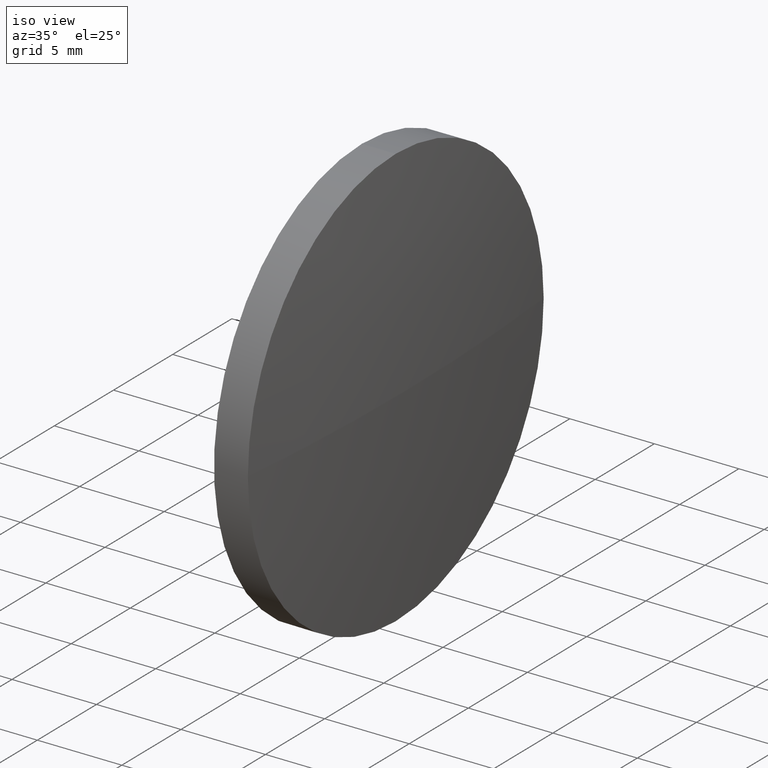
[diagram: clean part render]
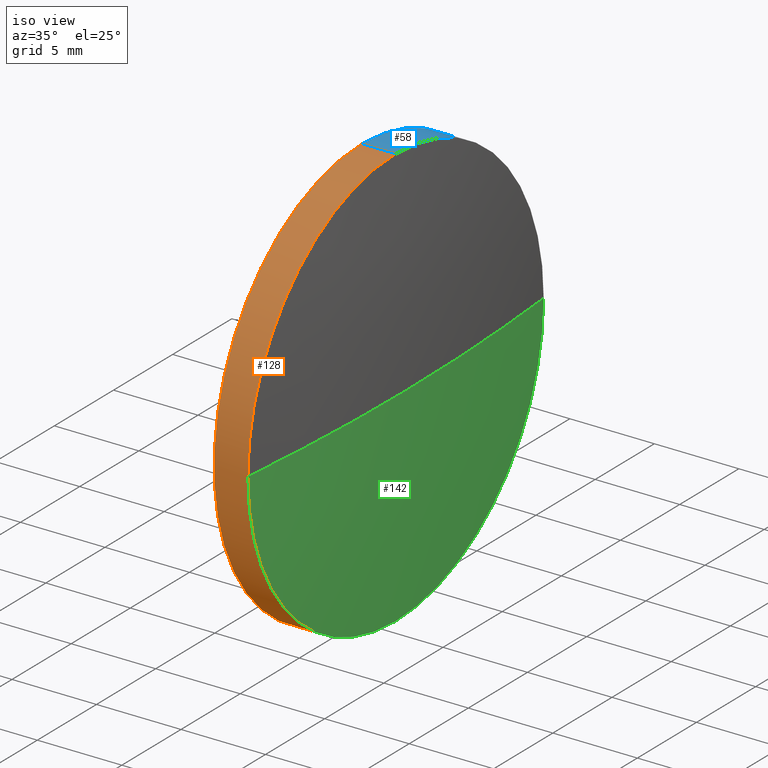
[diagram: same view with three faces highlighted in distinct colors, each labeled with its STEP entity id]
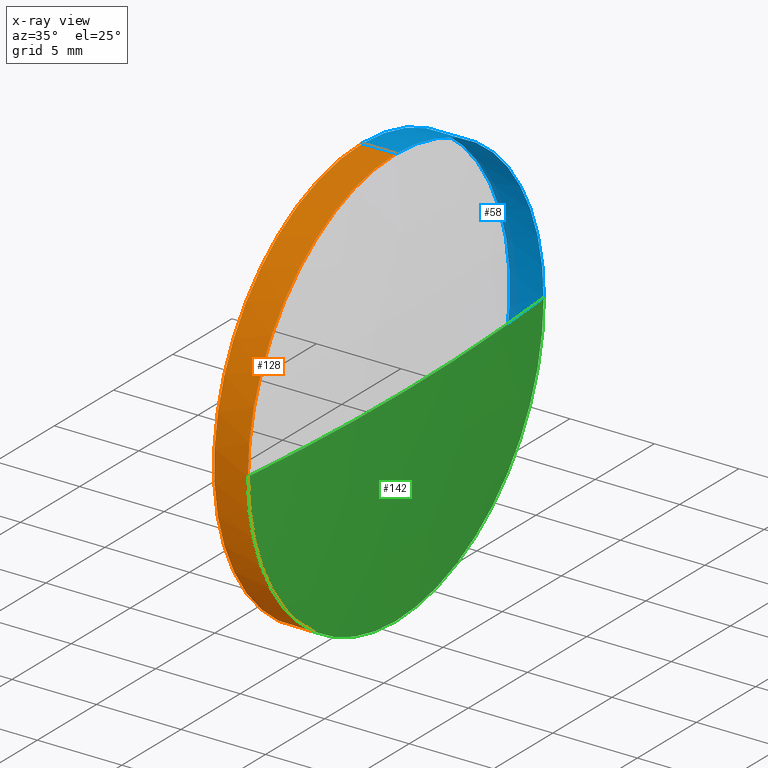
[diagram: x-ray of the same camera — body ghosted, the three highlighted faces saturated]
A machine part, iso view with three faces highlighted in distinct colors.
The next image is the same camera in x-ray (body ghosted, the three faces saturated) — at least one of them is partly hidden behind the body in this view.
Their STEP definitions:

[orange] entity #128 — the highlighted cylindrical surface (partial cylindrical patch) has radius 12.5 mm, axis along (-1, -0, -0).
#4 = CARTESIAN_POINT ( 'NONE',  ( 397.0637823262245500, 95.20191544312206100, 0.0000000000000000000 ) ) ;
#8 = CYLINDRICAL_SURFACE ( 'NONE', #35, 12.49999999999999600 ) ;
#13 = EDGE_CURVE ( 'NONE', #52, #54, #84, .T. ) ;
#23 = DIRECTION ( 'NONE',  ( 0.0000000000000000000, 0.0000000000000000000, 1.000000000000000000 ) ) ;
#24 = CARTESIAN_POINT ( 'NONE',  ( 393.0346747477875600, 95.20191544312206100, 0.0000000000000000000 ) ) ;
#34 = CARTESIAN_POINT ( 'NONE',  ( 397.0637823262245500, 82.70191544312200400, -1.530808498934184800E-015 ) ) ;
#35 = AXIS2_PLACEMENT_3D ( 'NONE', #24, #130, #61 ) ;
#37 = DIRECTION ( 'NONE',  ( 0.0000000000000000000, 0.0000000000000000000, 1.000000000000000000 ) ) ;
#38 = EDGE_LOOP ( 'NONE', ( #83, #184, #80, #62, #148 ) ) ;
#40 = CIRCLE ( 'NONE', #59, 12.49999999999999600 ) ;
#49 = CARTESIAN_POINT ( 'NONE',  ( 395.0637823262245500, 95.20191544312206100, 12.49999999999999600 ) ) ;
#50 = VERTEX_POINT ( 'NONE', #143 ) ;
#52 = VERTEX_POINT ( 'NONE', #157 ) ;
#54 = VERTEX_POINT ( 'NONE', #34 ) ;
#59 = AXIS2_PLACEMENT_3D ( 'NONE', #99, #176, #23 ) ;
#60 = DIRECTION ( 'NONE',  ( 0.0000000000000000000, 0.0000000000000000000, 1.000000000000000000 ) ) ;
#61 = DIRECTION ( 'NONE',  ( 0.0000000000000000000, 0.0000000000000000000, 1.000000000000000000 ) ) ;
#62 = ORIENTED_EDGE ( 'NONE', *, *, #186, .T. ) ;
#66 = VECTOR ( 'NONE', #117, 1000.000000000000000 ) ;
#68 = VERTEX_POINT ( 'NONE', #49 ) ;
#71 = DIRECTION ( 'NONE',  ( -1.000000000000000000, -0.0000000000000000000, -0.0000000000000000000 ) ) ;
#72 = CIRCLE ( 'NONE', #146, 12.49999999999999600 ) ;
#74 = CARTESIAN_POINT ( 'NONE',  ( 397.0637823262245500, 95.20191544312206100, 12.49999999999999600 ) ) ;
#75 = LINE ( 'NONE', #166, #66 ) ;
#80 = ORIENTED_EDGE ( 'NONE', *, *, #110, .T. ) ;
#82 = LINE ( 'NONE', #88, #149 ) ;
#83 = ORIENTED_EDGE ( 'NONE', *, *, #168, .F. ) ;
#84 = CIRCLE ( 'NONE', #185, 12.49999999999999600 ) ;
#88 = CARTESIAN_POINT ( 'NONE',  ( 393.0346747477875600, 95.20191544312206100, -12.49999999999999600 ) ) ;
#90 = CARTESIAN_POINT ( 'NONE',  ( 395.0637823262245500, 95.20191544312206100, 0.0000000000000000000 ) ) ;
#99 = CARTESIAN_POINT ( 'NONE',  ( 397.0637823262245500, 95.20191544312206100, 0.0000000000000000000 ) ) ;
#101 = DIRECTION ( 'NONE',  ( -1.000000000000000000, -0.0000000000000000000, -0.0000000000000000000 ) ) ;
#110 = EDGE_CURVE ( 'NONE', #54, #122, #40, .T. ) ;
#117 = DIRECTION ( 'NONE',  ( -1.000000000000000000, -0.0000000000000000000, -0.0000000000000000000 ) ) ;
#122 = VERTEX_POINT ( 'NONE', #74 ) ;
#128 = ADVANCED_FACE ( 'NONE', ( #169 ), #8, .T. ) ;
#130 = DIRECTION ( 'NONE',  ( -1.000000000000000000, -0.0000000000000000000, -0.0000000000000000000 ) ) ;
#143 = CARTESIAN_POINT ( 'NONE',  ( 395.0637823262245500, 95.20191544312206100, -12.49999999999999600 ) ) ;
#146 = AXIS2_PLACEMENT_3D ( 'NONE', #90, #101, #37 ) ;
#147 = DIRECTION ( 'NONE',  ( -1.000000000000000000, -0.0000000000000000000, -0.0000000000000000000 ) ) ;
#148 = ORIENTED_EDGE ( 'NONE', *, *, #153, .F. ) ;
#149 = VECTOR ( 'NONE', #147, 1000.000000000000000 ) ;
#153 = EDGE_CURVE ( 'NONE', #50, #68, #72, .T. ) ;
#157 = CARTESIAN_POINT ( 'NONE',  ( 397.0637823262245500, 95.20191544312206100, -12.49999999999999600 ) ) ;
#166 = CARTESIAN_POINT ( 'NONE',  ( 393.0346747477875600, 95.20191544312206100, 12.49999999999999600 ) ) ;
#168 = EDGE_CURVE ( 'NONE', #52, #50, #82, .T. ) ;
#169 = FACE_OUTER_BOUND ( 'NONE', #38, .T. ) ;
#176 = DIRECTION ( 'NONE',  ( -1.000000000000000000, -0.0000000000000000000, -0.0000000000000000000 ) ) ;
#184 = ORIENTED_EDGE ( 'NONE', *, *, #13, .T. ) ;
#185 = AXIS2_PLACEMENT_3D ( 'NONE', #4, #71, #60 ) ;
#186 = EDGE_CURVE ( 'NONE', #122, #68, #75, .T. ) ;

[blue] entity #58 — the highlighted cylindrical surface (partial cylindrical patch) has radius 12.5 mm, axis along (-1, -0, -0).
#5 = AXIS2_PLACEMENT_3D ( 'NONE', #177, #33, #85 ) ;
#6 = DIRECTION ( 'NONE',  ( -1.000000000000000000, -0.0000000000000000000, -0.0000000000000000000 ) ) ;
#9 = CIRCLE ( 'NONE', #5, 12.49999999999999600 ) ;
#15 = AXIS2_PLACEMENT_3D ( 'NONE', #145, #6, #131 ) ;
#16 = FACE_OUTER_BOUND ( 'NONE', #174, .T. ) ;
#20 = VERTEX_POINT ( 'NONE', #36 ) ;
#21 = CYLINDRICAL_SURFACE ( 'NONE', #15, 12.49999999999999600 ) ;
#27 = CARTESIAN_POINT ( 'NONE',  ( 397.0637823262245500, 95.20191544312206100, 0.0000000000000000000 ) ) ;
#31 = AXIS2_PLACEMENT_3D ( 'NONE', #163, #77, #91 ) ;
#33 = DIRECTION ( 'NONE',  ( -1.000000000000000000, -0.0000000000000000000, -0.0000000000000000000 ) ) ;
#36 = CARTESIAN_POINT ( 'NONE',  ( 397.0637823262245500, 107.7019154431220200, 0.0000000000000000000 ) ) ;
#41 = ORIENTED_EDGE ( 'NONE', *, *, #134, .T. ) ;
#44 = ORIENTED_EDGE ( 'NONE', *, *, #164, .T. ) ;
#49 = CARTESIAN_POINT ( 'NONE',  ( 395.0637823262245500, 95.20191544312206100, 12.49999999999999600 ) ) ;
#50 = VERTEX_POINT ( 'NONE', #143 ) ;
#52 = VERTEX_POINT ( 'NONE', #157 ) ;
#58 = ADVANCED_FACE ( 'NONE', ( #16 ), #21, .T. ) ;
#66 = VECTOR ( 'NONE', #117, 1000.000000000000000 ) ;
#68 = VERTEX_POINT ( 'NONE', #49 ) ;
#74 = CARTESIAN_POINT ( 'NONE',  ( 397.0637823262245500, 95.20191544312206100, 12.49999999999999600 ) ) ;
#75 = LINE ( 'NONE', #166, #66 ) ;
#77 = DIRECTION ( 'NONE',  ( -1.000000000000000000, -0.0000000000000000000, -0.0000000000000000000 ) ) ;
#78 = DIRECTION ( 'NONE',  ( -1.000000000000000000, -0.0000000000000000000, -0.0000000000000000000 ) ) ;
#82 = LINE ( 'NONE', #88, #149 ) ;
#85 = DIRECTION ( 'NONE',  ( 0.0000000000000000000, 0.0000000000000000000, 1.000000000000000000 ) ) ;
#86 = ORIENTED_EDGE ( 'NONE', *, *, #186, .F. ) ;
#88 = CARTESIAN_POINT ( 'NONE',  ( 393.0346747477875600, 95.20191544312206100, -12.49999999999999600 ) ) ;
#91 = DIRECTION ( 'NONE',  ( 0.0000000000000000000, 0.0000000000000000000, 1.000000000000000000 ) ) ;
#103 = CIRCLE ( 'NONE', #136, 12.49999999999999600 ) ;
#106 = ORIENTED_EDGE ( 'NONE', *, *, #121, .F. ) ;
#108 = CIRCLE ( 'NONE', #31, 12.49999999999999600 ) ;
#114 = ORIENTED_EDGE ( 'NONE', *, *, #168, .T. ) ;
#117 = DIRECTION ( 'NONE',  ( -1.000000000000000000, -0.0000000000000000000, -0.0000000000000000000 ) ) ;
#121 = EDGE_CURVE ( 'NONE', #68, #50, #9, .T. ) ;
#122 = VERTEX_POINT ( 'NONE', #74 ) ;
#131 = DIRECTION ( 'NONE',  ( 0.0000000000000000000, 0.0000000000000000000, 1.000000000000000000 ) ) ;
#134 = EDGE_CURVE ( 'NONE', #20, #52, #108, .T. ) ;
#136 = AXIS2_PLACEMENT_3D ( 'NONE', #27, #78, #179 ) ;
#143 = CARTESIAN_POINT ( 'NONE',  ( 395.0637823262245500, 95.20191544312206100, -12.49999999999999600 ) ) ;
#145 = CARTESIAN_POINT ( 'NONE',  ( 393.0346747477875600, 95.20191544312206100, 0.0000000000000000000 ) ) ;
#147 = DIRECTION ( 'NONE',  ( -1.000000000000000000, -0.0000000000000000000, -0.0000000000000000000 ) ) ;
#149 = VECTOR ( 'NONE', #147, 1000.000000000000000 ) ;
#157 = CARTESIAN_POINT ( 'NONE',  ( 397.0637823262245500, 95.20191544312206100, -12.49999999999999600 ) ) ;
#163 = CARTESIAN_POINT ( 'NONE',  ( 397.0637823262245500, 95.20191544312206100, 0.0000000000000000000 ) ) ;
#164 = EDGE_CURVE ( 'NONE', #122, #20, #103, .T. ) ;
#166 = CARTESIAN_POINT ( 'NONE',  ( 393.0346747477875600, 95.20191544312206100, 12.49999999999999600 ) ) ;
#168 = EDGE_CURVE ( 'NONE', #52, #50, #82, .T. ) ;
#174 = EDGE_LOOP ( 'NONE', ( #41, #114, #106, #86, #44 ) ) ;
#177 = CARTESIAN_POINT ( 'NONE',  ( 395.0637823262245500, 95.20191544312206100, 0.0000000000000000000 ) ) ;
#179 = DIRECTION ( 'NONE',  ( 0.0000000000000000000, 0.0000000000000000000, 1.000000000000000000 ) ) ;
#186 = EDGE_CURVE ( 'NONE', #122, #68, #75, .T. ) ;

[green] entity #142 — the highlighted spherical surface has radius 128.379 mm.
#4 = CARTESIAN_POINT ( 'NONE',  ( 397.0637823262245500, 95.20191544312206100, 0.0000000000000000000 ) ) ;
#7 = CARTESIAN_POINT ( 'NONE',  ( 269.2950118344210800, 95.20191544312194800, 0.0000000000000000000 ) ) ;
#10 = DIRECTION ( 'NONE',  ( -0.0000000000000000000, 0.0000000000000000000, -1.000000000000000000 ) ) ;
#11 = FACE_OUTER_BOUND ( 'NONE', #139, .T. ) ;
#13 = EDGE_CURVE ( 'NONE', #52, #54, #84, .T. ) ;
#19 = AXIS2_PLACEMENT_3D ( 'NONE', #167, #10, #104 ) ;
#20 = VERTEX_POINT ( 'NONE', #36 ) ;
#29 = AXIS2_PLACEMENT_3D ( 'NONE', #7, #135, #133 ) ;
#31 = AXIS2_PLACEMENT_3D ( 'NONE', #163, #77, #91 ) ;
#34 = CARTESIAN_POINT ( 'NONE',  ( 397.0637823262245500, 82.70191544312200400, -1.530808498934184800E-015 ) ) ;
#36 = CARTESIAN_POINT ( 'NONE',  ( 397.0637823262245500, 107.7019154431220200, 0.0000000000000000000 ) ) ;
#47 = CIRCLE ( 'NONE', #113, 128.3787704918035200 ) ;
#48 = DIRECTION ( 'NONE',  ( 0.0000000000000000000, 1.000000000000000000, 1.224646799147353200E-016 ) ) ;
#52 = VERTEX_POINT ( 'NONE', #157 ) ;
#54 = VERTEX_POINT ( 'NONE', #34 ) ;
#60 = DIRECTION ( 'NONE',  ( 0.0000000000000000000, 0.0000000000000000000, 1.000000000000000000 ) ) ;
#71 = DIRECTION ( 'NONE',  ( -1.000000000000000000, -0.0000000000000000000, -0.0000000000000000000 ) ) ;
#77 = DIRECTION ( 'NONE',  ( -1.000000000000000000, -0.0000000000000000000, -0.0000000000000000000 ) ) ;
#81 = SPHERICAL_SURFACE ( 'NONE', #19, 128.3787704918035200 ) ;
#84 = CIRCLE ( 'NONE', #185, 12.49999999999999600 ) ;
#91 = DIRECTION ( 'NONE',  ( 0.0000000000000000000, 0.0000000000000000000, 1.000000000000000000 ) ) ;
#93 = ORIENTED_EDGE ( 'NONE', *, *, #13, .F. ) ;
#95 = ORIENTED_EDGE ( 'NONE', *, *, #134, .F. ) ;
#97 = DIRECTION ( 'NONE',  ( 0.0000000000000000000, 1.224646799147353200E-016, -1.000000000000000000 ) ) ;
#102 = EDGE_CURVE ( 'NONE', #137, #54, #47, .T. ) ;
#104 = DIRECTION ( 'NONE',  ( 0.0000000000000000000, 1.000000000000000000, 0.0000000000000000000 ) ) ;
#108 = CIRCLE ( 'NONE', #31, 12.49999999999999600 ) ;
#112 = CARTESIAN_POINT ( 'NONE',  ( 269.2950118344210800, 95.20191544312194800, 0.0000000000000000000 ) ) ;
#113 = AXIS2_PLACEMENT_3D ( 'NONE', #112, #97, #48 ) ;
#120 = ORIENTED_EDGE ( 'NONE', *, *, #173, .F. ) ;
#127 = ORIENTED_EDGE ( 'NONE', *, *, #102, .T. ) ;
#133 = DIRECTION ( 'NONE',  ( 1.000000000000000000, 0.0000000000000000000, 0.0000000000000000000 ) ) ;
#134 = EDGE_CURVE ( 'NONE', #20, #52, #108, .T. ) ;
#135 = DIRECTION ( 'NONE',  ( -0.0000000000000000000, 0.0000000000000000000, 1.000000000000000000 ) ) ;
#137 = VERTEX_POINT ( 'NONE', #181 ) ;
#139 = EDGE_LOOP ( 'NONE', ( #120, #127, #93, #95 ) ) ;
#142 = ADVANCED_FACE ( 'NONE', ( #11 ), #81, .T. ) ;
#152 = CIRCLE ( 'NONE', #29, 128.3787704918035200 ) ;
#157 = CARTESIAN_POINT ( 'NONE',  ( 397.0637823262245500, 95.20191544312206100, -12.49999999999999600 ) ) ;
#163 = CARTESIAN_POINT ( 'NONE',  ( 397.0637823262245500, 95.20191544312206100, 0.0000000000000000000 ) ) ;
#167 = CARTESIAN_POINT ( 'NONE',  ( 269.2950118344210800, 95.20191544312194800, 0.0000000000000000000 ) ) ;
#173 = EDGE_CURVE ( 'NONE', #137, #20, #152, .T. ) ;
#181 = CARTESIAN_POINT ( 'NONE',  ( 397.6737823262245700, 95.20191544312196200, 0.0000000000000000000 ) ) ;
#185 = AXIS2_PLACEMENT_3D ( 'NONE', #4, #71, #60 ) ;